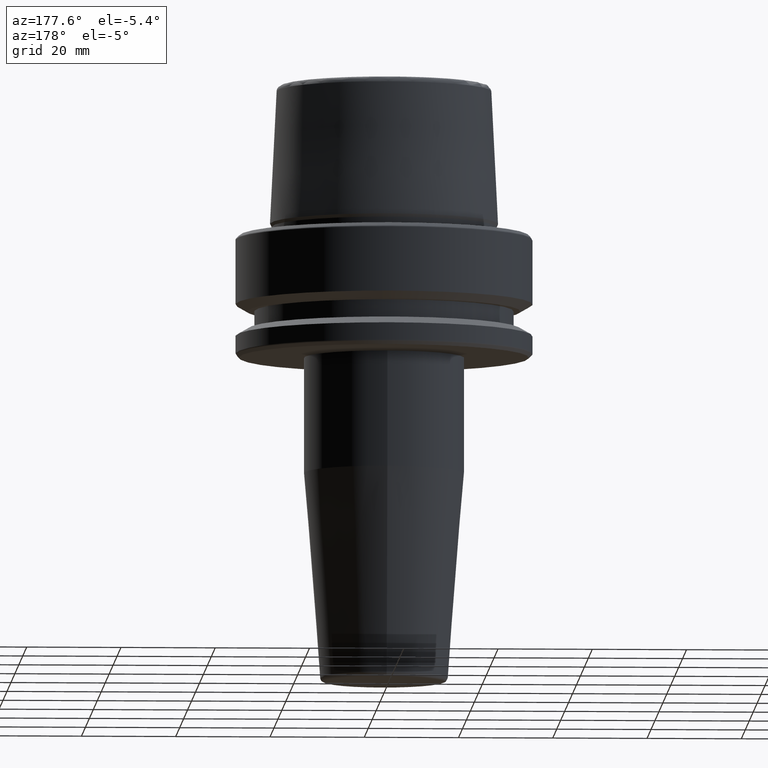
[diagram: clean part render]
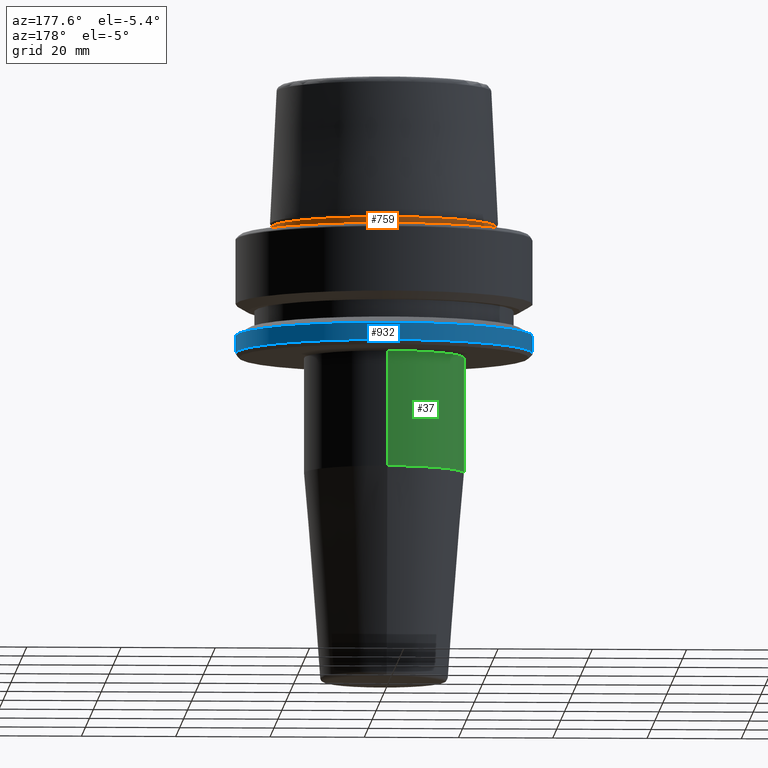
[diagram: same view with three faces highlighted in distinct colors, each labeled with its STEP entity id]
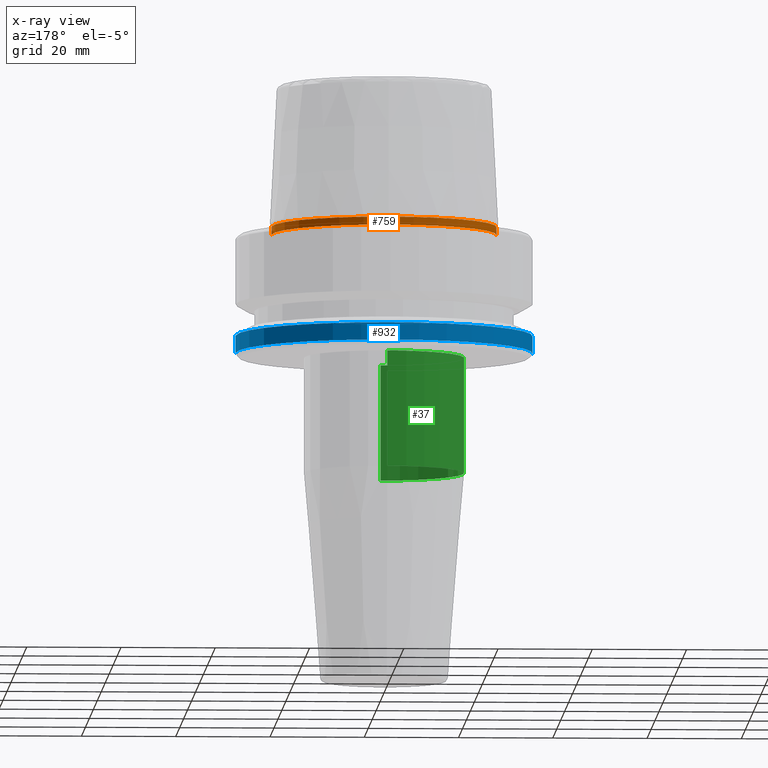
[diagram: x-ray of the same camera — body ghosted, the three highlighted faces saturated]
A machine part, auxiliary view with three faces highlighted in distinct colors.
The next image is the same camera in x-ray (body ghosted, the three faces saturated) — at least one of them is partly hidden behind the body in this view.
Their STEP definitions:

[orange] entity #759 — the highlighted cylindrical surface (partial cylindrical patch) has radius 23.89 mm, axis along (-0, -0, 1).
#9 = DIRECTION ( 'NONE',  ( 1.000000000000000000, 0.0000000000000000000, 0.0000000000000000000 ) ) ;
#15 = CIRCLE ( 'NONE', #814, 23.89000000000000400 ) ;
#21 = AXIS2_PLACEMENT_3D ( 'NONE', #723, #815, #9 ) ;
#25 = AXIS2_PLACEMENT_3D ( 'NONE', #643, #26, #745 ) ;
#26 = DIRECTION ( 'NONE',  ( -0.0000000000000000000, -0.0000000000000000000, 1.000000000000000000 ) ) ;
#36 = CARTESIAN_POINT ( 'NONE',  ( -23.89000000000000100, 2.944380070784114200E-015, 1.845119734979375100 ) ) ;
#45 = CYLINDRICAL_SURFACE ( 'NONE', #21, 23.89000000000000100 ) ;
#48 = CARTESIAN_POINT ( 'NONE',  ( 0.0000000000000000000, 0.0000000000000000000, 0.1312552021302954000 ) ) ;
#159 = DIRECTION ( 'NONE',  ( 1.000000000000000000, 0.0000000000000000000, 0.0000000000000000000 ) ) ;
#201 = CARTESIAN_POINT ( 'NONE',  ( -23.89000000000000100, 2.925681203163027000E-015, 78.96908074195309300 ) ) ;
#357 = LINE ( 'NONE', #201, #716 ) ;
#369 = ORIENTED_EDGE ( 'NONE', *, *, #1171, .F. ) ;
#371 = EDGE_CURVE ( 'NONE', #592, #744, #357, .T. ) ;
#486 = EDGE_CURVE ( 'NONE', #1246, #592, #15, .T. ) ;
#523 = CARTESIAN_POINT ( 'NONE',  ( 23.89000000000000100, 0.0000000000000000000, 1.845119734979375100 ) ) ;
#555 = CARTESIAN_POINT ( 'NONE',  ( -23.89000000000000400, 2.961613815265650600E-015, 0.1312552021302954000 ) ) ;
#592 = VERTEX_POINT ( 'NONE', #555 ) ;
#593 = EDGE_CURVE ( 'NONE', #1246, #1148, #1041, .T. ) ;
#616 = FACE_OUTER_BOUND ( 'NONE', #1088, .T. ) ;
#643 = CARTESIAN_POINT ( 'NONE',  ( 0.0000000000000000000, 0.0000000000000000000, 1.845119734979375100 ) ) ;
#657 = ORIENTED_EDGE ( 'NONE', *, *, #593, .F. ) ;
#716 = VECTOR ( 'NONE', #901, 1000.000000000000000 ) ;
#723 = CARTESIAN_POINT ( 'NONE',  ( 0.0000000000000000000, 0.0000000000000000000, 78.96908074195309300 ) ) ;
#739 = CARTESIAN_POINT ( 'NONE',  ( 23.89000000000000100, 0.0000000000000000000, 78.96908074195309300 ) ) ;
#744 = VERTEX_POINT ( 'NONE', #36 ) ;
#745 = DIRECTION ( 'NONE',  ( 1.000000000000000000, 0.0000000000000000000, 0.0000000000000000000 ) ) ;
#759 = ADVANCED_FACE ( 'NONE', ( #616 ), #45, .T. ) ;
#761 = DIRECTION ( 'NONE',  ( -0.0000000000000000000, -0.0000000000000000000, 1.000000000000000000 ) ) ;
#814 = AXIS2_PLACEMENT_3D ( 'NONE', #48, #761, #159 ) ;
#815 = DIRECTION ( 'NONE',  ( -0.0000000000000000000, -0.0000000000000000000, 1.000000000000000000 ) ) ;
#849 = ORIENTED_EDGE ( 'NONE', *, *, #371, .T. ) ;
#851 = CIRCLE ( 'NONE', #25, 23.89000000000000100 ) ;
#901 = DIRECTION ( 'NONE',  ( -0.0000000000000000000, -0.0000000000000000000, 1.000000000000000000 ) ) ;
#1041 = LINE ( 'NONE', #739, #1089 ) ;
#1088 = EDGE_LOOP ( 'NONE', ( #1157, #849, #369, #657 ) ) ;
#1089 = VECTOR ( 'NONE', #1212, 1000.000000000000000 ) ;
#1148 = VERTEX_POINT ( 'NONE', #523 ) ;
#1157 = ORIENTED_EDGE ( 'NONE', *, *, #486, .T. ) ;
#1171 = EDGE_CURVE ( 'NONE', #1148, #744, #851, .T. ) ;
#1196 = CARTESIAN_POINT ( 'NONE',  ( 23.89000000000000400, 0.0000000000000000000, 0.1312552021302954000 ) ) ;
#1212 = DIRECTION ( 'NONE',  ( -0.0000000000000000000, -0.0000000000000000000, 1.000000000000000000 ) ) ;
#1246 = VERTEX_POINT ( 'NONE', #1196 ) ;

[blue] entity #932 — the highlighted cylindrical surface (partial cylindrical patch) has radius 31.5 mm, axis along (-0, -0, 1).
#30 = VECTOR ( 'NONE', #752, 1000.000000000000000 ) ;
#40 = DIRECTION ( 'NONE',  ( -0.0000000000000000000, -0.0000000000000000000, 1.000000000000000000 ) ) ;
#64 = CIRCLE ( 'NONE', #231, 31.50000000000000000 ) ;
#84 = ORIENTED_EDGE ( 'NONE', *, *, #999, .F. ) ;
#147 = LINE ( 'NONE', #1045, #689 ) ;
#210 = DIRECTION ( 'NONE',  ( 1.000000000000000000, 0.0000000000000000000, 0.0000000000000000000 ) ) ;
#231 = AXIS2_PLACEMENT_3D ( 'NONE', #420, #1066, #530 ) ;
#258 = FACE_OUTER_BOUND ( 'NONE', #1140, .T. ) ;
#323 = CARTESIAN_POINT ( 'NONE',  ( -31.50000000000000000, 3.857637417314162700E-015, -21.37749907475931700 ) ) ;
#368 = AXIS2_PLACEMENT_3D ( 'NONE', #649, #40, #753 ) ;
#420 = CARTESIAN_POINT ( 'NONE',  ( 0.0000000000000000000, 0.0000000000000000000, -25.03431457505077200 ) ) ;
#462 = ORIENTED_EDGE ( 'NONE', *, *, #1208, .F. ) ;
#495 = CARTESIAN_POINT ( 'NONE',  ( 31.50000000000000000, 0.0000000000000000000, -25.03431457505077200 ) ) ;
#506 = VERTEX_POINT ( 'NONE', #665 ) ;
#508 = CARTESIAN_POINT ( 'NONE',  ( 0.0000000000000000000, 0.0000000000000000000, 78.96908074195309300 ) ) ;
#530 = DIRECTION ( 'NONE',  ( 1.000000000000000000, 0.0000000000000000000, 0.0000000000000000000 ) ) ;
#545 = ORIENTED_EDGE ( 'NONE', *, *, #804, .T. ) ;
#605 = DIRECTION ( 'NONE',  ( -0.0000000000000000000, -0.0000000000000000000, 1.000000000000000000 ) ) ;
#613 = DIRECTION ( 'NONE',  ( -0.0000000000000000000, -0.0000000000000000000, 1.000000000000000000 ) ) ;
#624 = ORIENTED_EDGE ( 'NONE', *, *, #860, .T. ) ;
#649 = CARTESIAN_POINT ( 'NONE',  ( 0.0000000000000000000, 0.0000000000000000000, -21.37749907475931700 ) ) ;
#654 = CARTESIAN_POINT ( 'NONE',  ( -31.50000000000000000, 3.857637417314161900E-015, -25.03431457505077200 ) ) ;
#665 = CARTESIAN_POINT ( 'NONE',  ( 31.50000000000000000, 0.0000000000000000000, -21.37749907475931700 ) ) ;
#689 = VECTOR ( 'NONE', #605, 1000.000000000000000 ) ;
#752 = DIRECTION ( 'NONE',  ( -0.0000000000000000000, -0.0000000000000000000, 1.000000000000000000 ) ) ;
#753 = DIRECTION ( 'NONE',  ( 1.000000000000000000, 0.0000000000000000000, 0.0000000000000000000 ) ) ;
#799 = CIRCLE ( 'NONE', #368, 31.50000000000000000 ) ;
#804 = EDGE_CURVE ( 'NONE', #848, #1036, #64, .T. ) ;
#848 = VERTEX_POINT ( 'NONE', #495 ) ;
#860 = EDGE_CURVE ( 'NONE', #1036, #1162, #147, .T. ) ;
#932 = ADVANCED_FACE ( 'NONE', ( #258 ), #965, .T. ) ;
#965 = CYLINDRICAL_SURFACE ( 'NONE', #1174, 31.50000000000000000 ) ;
#999 = EDGE_CURVE ( 'NONE', #848, #506, #1242, .T. ) ;
#1036 = VERTEX_POINT ( 'NONE', #654 ) ;
#1045 = CARTESIAN_POINT ( 'NONE',  ( -31.50000000000000000, 3.857637417314162700E-015, 78.96908074195309300 ) ) ;
#1064 = CARTESIAN_POINT ( 'NONE',  ( 31.50000000000000000, 0.0000000000000000000, 78.96908074195309300 ) ) ;
#1066 = DIRECTION ( 'NONE',  ( -0.0000000000000000000, -0.0000000000000000000, 1.000000000000000000 ) ) ;
#1140 = EDGE_LOOP ( 'NONE', ( #545, #624, #462, #84 ) ) ;
#1162 = VERTEX_POINT ( 'NONE', #323 ) ;
#1174 = AXIS2_PLACEMENT_3D ( 'NONE', #508, #613, #210 ) ;
#1208 = EDGE_CURVE ( 'NONE', #506, #1162, #799, .T. ) ;
#1242 = LINE ( 'NONE', #1064, #30 ) ;

[green] entity #37 — the highlighted cylindrical surface (partial cylindrical patch) has radius 17 mm, axis along (-0, -0, -1).
#14 = CARTESIAN_POINT ( 'NONE',  ( 0.0000000000000000000, -7.960204194457797300E-015, -95.00000000000000000 ) ) ;
#32 = EDGE_CURVE ( 'NONE', #169, #528, #70, .T. ) ;
#37 = ADVANCED_FACE ( 'NONE', ( #629 ), #171, .T. ) ;
#70 = LINE ( 'NONE', #916, #1120 ) ;
#73 = CARTESIAN_POINT ( 'NONE',  ( 0.0000000000000000000, -2.829712240430066800E-015, -50.52828342338445800 ) ) ;
#155 = EDGE_CURVE ( 'NONE', #842, #315, #185, .T. ) ;
#169 = VERTEX_POINT ( 'NONE', #249 ) ;
#171 = CYLINDRICAL_SURFACE ( 'NONE', #1029, 16.99999999999999300 ) ;
#178 = DIRECTION ( 'NONE',  ( 0.0000000000000000000, 1.000000000000000000, 0.0000000000000000000 ) ) ;
#185 = LINE ( 'NONE', #784, #781 ) ;
#203 = CARTESIAN_POINT ( 'NONE',  ( 0.0000000000000000000, 0.0000000000000000000, -26.00000000000001100 ) ) ;
#249 = CARTESIAN_POINT ( 'NONE',  ( 2.081899558550499900E-015, -16.99999999999999300, -26.00000000000001100 ) ) ;
#278 = EDGE_CURVE ( 'NONE', #528, #315, #440, .T. ) ;
#295 = DIRECTION ( 'NONE',  ( 1.000000000000000000, 0.0000000000000000000, 0.0000000000000000000 ) ) ;
#297 = ORIENTED_EDGE ( 'NONE', *, *, #892, .T. ) ;
#312 = DIRECTION ( 'NONE',  ( -0.0000000000000000000, -1.153652781805477900E-016, -1.000000000000000000 ) ) ;
#315 = VERTEX_POINT ( 'NONE', #885 ) ;
#354 = ORIENTED_EDGE ( 'NONE', *, *, #155, .T. ) ;
#419 = DIRECTION ( 'NONE',  ( 0.0000000000000000000, 1.000000000000000000, 0.0000000000000000000 ) ) ;
#440 = CIRCLE ( 'NONE', #1047, 16.99999999999999600 ) ;
#453 = CIRCLE ( 'NONE', #639, 16.99999999999999300 ) ;
#476 = DIRECTION ( 'NONE',  ( -0.0000000000000000000, -1.153652781805477900E-016, -1.000000000000000000 ) ) ;
#528 = VERTEX_POINT ( 'NONE', #915 ) ;
#629 = FACE_OUTER_BOUND ( 'NONE', #953, .T. ) ;
#639 = AXIS2_PLACEMENT_3D ( 'NONE', #203, #902, #295 ) ;
#754 = ORIENTED_EDGE ( 'NONE', *, *, #278, .F. ) ;
#779 = DIRECTION ( 'NONE',  ( -0.0000000000000000000, -1.153652781805477900E-016, -1.000000000000000000 ) ) ;
#781 = VECTOR ( 'NONE', #476, 1000.000000000000000 ) ;
#784 = CARTESIAN_POINT ( 'NONE',  ( 0.0000000000000000000, 16.99999999999998600, -95.00000000000000000 ) ) ;
#842 = VERTEX_POINT ( 'NONE', #1141 ) ;
#885 = CARTESIAN_POINT ( 'NONE',  ( 2.081899558550499900E-015, 16.99999999999999300, -50.52828342338445800 ) ) ;
#892 = EDGE_CURVE ( 'NONE', #169, #842, #453, .T. ) ;
#902 = DIRECTION ( 'NONE',  ( 0.0000000000000000000, 0.0000000000000000000, -1.000000000000000000 ) ) ;
#915 = CARTESIAN_POINT ( 'NONE',  ( 0.0000000000000000000, -17.00000000000000000, -50.52828342338445800 ) ) ;
#916 = CARTESIAN_POINT ( 'NONE',  ( 2.081899558550499900E-015, -17.00000000000000000, -95.00000000000000000 ) ) ;
#953 = EDGE_LOOP ( 'NONE', ( #1256, #297, #354, #754 ) ) ;
#1029 = AXIS2_PLACEMENT_3D ( 'NONE', #14, #1061, #419 ) ;
#1047 = AXIS2_PLACEMENT_3D ( 'NONE', #73, #779, #178 ) ;
#1061 = DIRECTION ( 'NONE',  ( -0.0000000000000000000, -1.153652781805477900E-016, -1.000000000000000000 ) ) ;
#1120 = VECTOR ( 'NONE', #312, 1000.000000000000000 ) ;
#1141 = CARTESIAN_POINT ( 'NONE',  ( 0.0000000000000000000, 16.99999999999999300, -26.00000000000001100 ) ) ;
#1256 = ORIENTED_EDGE ( 'NONE', *, *, #32, .F. ) ;